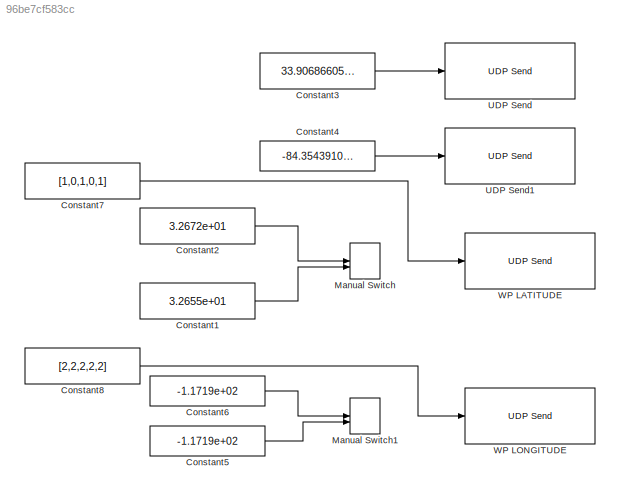
MODEL slx_96be7cf583cc
KIND model
CONFIG AbsTol = auto
CONFIG EnableMultiTasking = off
CONFIG FixedStep = auto
CONFIG MaxStep = auto
CONFIG MinStep = auto
CONFIG RelTol = 1e-3
CONFIG SampleTimeConstraint = Unconstrained
CONFIG SolverName = VariableStepAuto
CONFIG StartTime = 0.0
CONFIG StopTime = inf
BLOCK [Constant] Constant1
  SampleTime = 0.01
  Value = 3.2655e+01
BLOCK [Constant] Constant2
  SampleTime = 0.01
  Value = 3.2672e+01
BLOCK [Constant] Constant3
  SampleTime = 0.01
  Value = 33.906866054481476
BLOCK [Constant] Constant4
  SampleTime = 0.01
  Value = -84.35439102319383
BLOCK [Constant] Constant5
  SampleTime = 0.01
  Value = -1.1719e+02
BLOCK [Constant] Constant6
  SampleTime = 0.01
  Value = -1.1719e+02
BLOCK [Constant] Constant7
  SampleTime = 0.01
  Value = [1,0,1,0,1]
BLOCK [Constant] Constant8
  SampleTime = 0.01
  Value = [2,2,2,2,2]
BLOCK [ManualSwitch] Manual Switch
  CurrentSetting = 0
BLOCK [ManualSwitch] Manual Switch1
  CurrentSetting = 0
BLOCK [Reference] UDP Send  REF=instrumentlib/UDP Send
  Ports = [1]
  SourceBlock = instrumentlib/UDP Send
  SourceProductBaseCode = IC
  SourceType = UDP Send
BLOCK [Reference] UDP Send1  REF=instrumentlib/UDP Send
  Ports = [1]
  SourceBlock = instrumentlib/UDP Send
  SourceProductBaseCode = IC
  SourceType = UDP Send
BLOCK [Reference] WP LATITUDE  REF=instrumentlib/UDP Send
  Ports = [1]
  SourceBlock = instrumentlib/UDP Send
  SourceProductBaseCode = IC
  SourceType = UDP Send
BLOCK [Reference] WP LONGITUDE  REF=instrumentlib/UDP Send
  Ports = [1]
  SourceBlock = instrumentlib/UDP Send
  SourceProductBaseCode = IC
  SourceType = UDP Send
LINE Constant1:1 -> Manual Switch:2
LINE Constant2:1 -> Manual Switch:1
LINE Constant3:1 -> UDP Send:1
LINE Constant4:1 -> UDP Send1:1
LINE Constant5:1 -> Manual Switch1:2
LINE Constant6:1 -> Manual Switch1:1
LINE Constant7:1 -> WP LATITUDE:1
LINE Constant8:1 -> WP LONGITUDE:1
